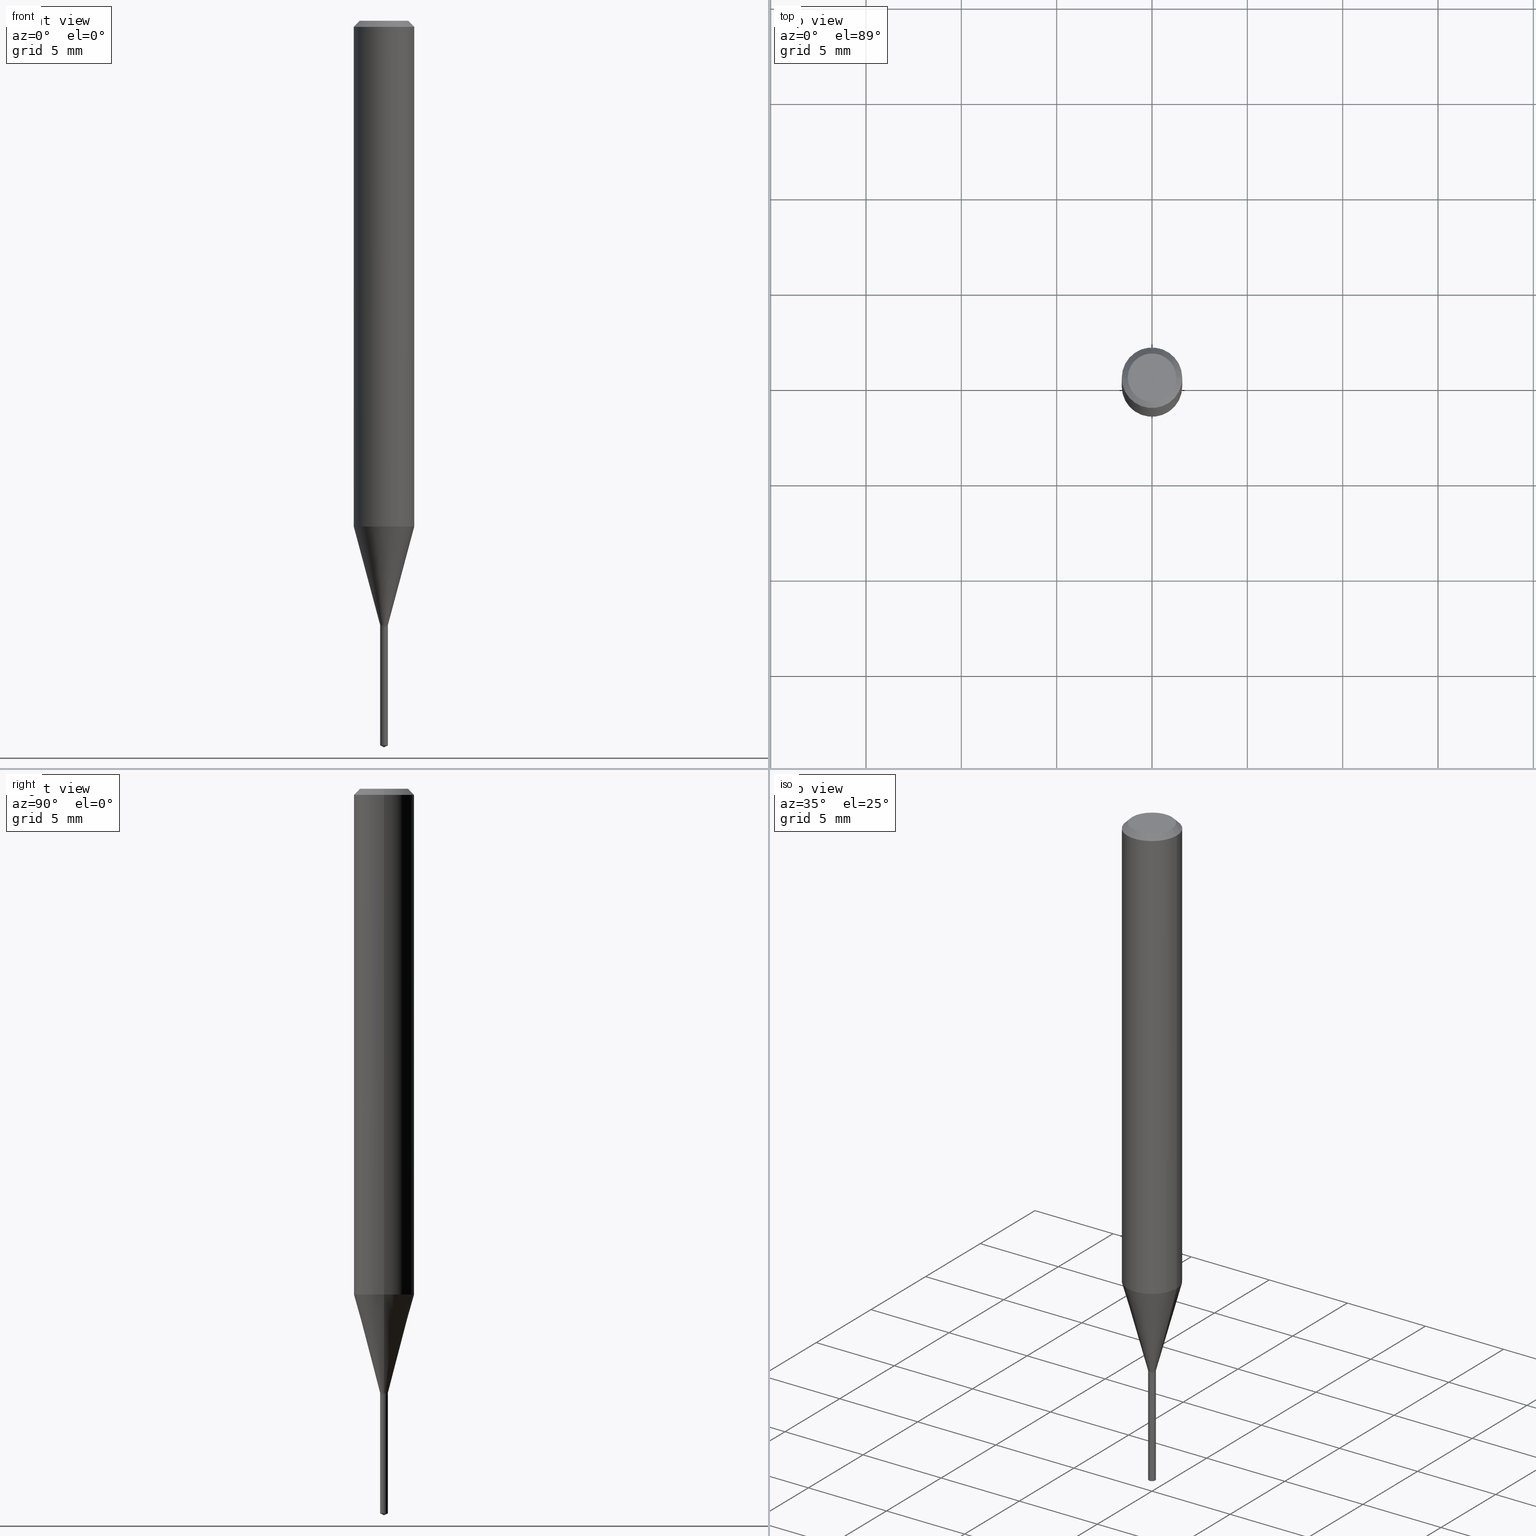
[diagram: canonical four-view strip — front | top / right | iso, engineering-drawing reading convention]
A machine part, canonical four-view strip (front | top / right | iso — engineering-drawing reading convention). The complete STEP part file that produces these views, byte-faithful:
ISO-10303-21;
HEADER;
FILE_DESCRIPTION (( 'STEP AP203' ),
    '1' );
FILE_NAME ('07284.STEP',
    '2024-04-23T20:12:24',
    ( '' ),
    ( '' ),
    'SwSTEP 2.0',
    'SolidWorks 2023',
    '' );
FILE_SCHEMA (( 'CONFIG_CONTROL_DESIGN' ));
ENDSEC;

DATA;
#1 = CARTESIAN_POINT ( 'NONE',  ( 0.06250000000000000000, -4.724246415962603826E-16, -0.01250000000000008396 ) ) ;
#2 = DIRECTION ( 'NONE',  ( -2.445468806185136597E-29, 3.491481338843145583E-15, 1.000000000000000000 ) ) ;
#3 = EDGE_LOOP ( 'NONE', ( #415, #48, #463, #86 ) ) ;
#4 = DIRECTION ( 'NONE',  ( 0.7071067811865453523, -7.319954787623248157E-15, -0.7071067811865496822 ) ) ;
#5 = ORIENTED_EDGE ( 'NONE', *, *, #470, .T. ) ;
#6 = CIRCLE ( 'NONE', #284, 0.06250000000000000000 ) ;
#7 = DIRECTION ( 'NONE',  ( 1.000000000000000000, -6.982962677686265922E-15, 4.875957971899673662E-29 ) ) ;
#8 = AXIS2_PLACEMENT_3D ( 'NONE', #188, #375, #219 ) ;
#9 = ORIENTED_EDGE ( 'NONE', *, *, #23, .F. ) ;
#10 = VERTEX_POINT ( 'NONE', #22 ) ;
#11 = VERTEX_POINT ( 'NONE', #53 ) ;
#12 = DATE_TIME_ROLE ( 'creation_date' ) ;
#13 = ORIENTED_EDGE ( 'NONE', *, *, #487, .T. ) ;
#14 = AXIS2_PLACEMENT_3D ( 'NONE', #377, #477, #485 ) ;
#15 = CC_DESIGN_DATE_AND_TIME_ASSIGNMENT ( #138, #214, ( #70 ) ) ;
#16 = ORIENTED_EDGE ( 'NONE', *, *, #294, .F. ) ;
#17 = DIRECTION ( 'NONE',  ( -2.445468806185136877E-29, 3.491481338843145188E-15, 1.000000000000000000 ) ) ;
#18 = PERSON_AND_ORGANIZATION ( #449, #484 ) ;
#19 = ORIENTED_EDGE ( 'NONE', *, *, #479, .F. ) ;
#20 = APPROVAL_DATE_TIME ( #469, #314 ) ;
#21 = AXIS2_PLACEMENT_3D ( 'NONE', #203, #488, #24 ) ;
#22 = CARTESIAN_POINT ( 'NONE',  ( -0.008000000000000010575, -4.302445606751801651E-15, -1.247600000000000042 ) ) ;
#23 = EDGE_CURVE ( 'NONE', #126, #137, #56, .T. ) ;
#24 = DIRECTION ( 'NONE',  ( -1.000000000000000000, 6.982962677686265922E-15, -4.876176775795935793E-29 ) ) ;
#25 = DIRECTION ( 'NONE',  ( -2.445468806185136597E-29, 3.491481338843145583E-15, 1.000000000000000000 ) ) ;
#26 = CARTESIAN_POINT ( 'NONE',  ( 3.056836007731441415E-31, -4.364351673553961684E-17, -0.01250000000000008396 ) ) ;
#27 = FACE_OUTER_BOUND ( 'NONE', #163, .T. ) ;
#28 = CLOSED_SHELL ( 'NONE', ( #250, #429, #164, #384, #149 ) ) ;
#29 = DIRECTION ( 'NONE',  ( -6.982962677686266711E-15, -1.000000000000000000, 0.000000000000000000 ) ) ;
#30 = CIRCLE ( 'NONE', #436, 0.008000000000000010575 ) ;
#31 = LOCAL_TIME ( 16, 12, 24.00000000000000000, #423 ) ;
#32 = PRODUCT_RELATED_PRODUCT_CATEGORY ( 'detail', '', ( #303 ) ) ;
#33 = FACE_OUTER_BOUND ( 'NONE', #168, .T. ) ;
#34 = CARTESIAN_POINT ( 'NONE',  ( -0.008000000000000010575, 5.684341886080809001E-17, -3.935148072203929922E-31 ) ) ;
#35 = DIRECTION ( 'NONE',  ( -1.000000000000000000, 6.982962677686266711E-15, 0.000000000000000000 ) ) ;
#36 = CARTESIAN_POINT ( 'NONE',  ( 2.553566428697655198E-29, -3.645816094952562303E-15, -1.044203230987496234 ) ) ;
#37 = AXIS2_PLACEMENT_3D ( 'NONE', #190, #2, #125 ) ;
#38 = DIRECTION ( 'NONE',  ( 1.000000000000000000, -6.982962677686266711E-15, 0.000000000000000000 ) ) ;
#39 = ORIENTED_EDGE ( 'NONE', *, *, #115, .T. ) ;
#40 = EDGE_CURVE ( 'NONE', #246, #135, #242, .T. ) ;
#41 = MANIFOLD_SOLID_BREP ( 'Body-Move/Copy2[2]', #362 ) ;
#42 = CARTESIAN_POINT ( 'NONE',  ( 0.000000000000000000, 0.000000000000000000, 0.000000000000000000 ) ) ;
#43 = CARTESIAN_POINT ( 'NONE',  ( 3.893286209682126177E-47, -5.558580879666067980E-33, -1.592040838891559689E-18 ) ) ;
#44 = ORIENTED_EDGE ( 'NONE', *, *, #130, .F. ) ;
#45 = ADVANCED_FACE ( 'NONE', ( #128 ), #109, .T. ) ;
#46 = LINE ( 'NONE', #79, #78 ) ;
#47 = VERTEX_POINT ( 'NONE', #319 ) ;
#48 = ORIENTED_EDGE ( 'NONE', *, *, #487, .F. ) ;
#49 = DATE_AND_TIME ( #83, #31 ) ;
#50 = DIRECTION ( 'NONE',  ( -2.445468806185136597E-29, 3.491481338843145583E-15, 1.000000000000000000 ) ) ;
#51 = ADVANCED_FACE ( 'NONE', ( #468 ), #472, .F. ) ;
#52 = AXIS2_PLACEMENT_3D ( 'NONE', #62, #113, #486 ) ;
#53 = CARTESIAN_POINT ( 'NONE',  ( 0.04999999999999999584, -4.077247707424184705E-16, -1.592040838888913461E-18 ) ) ;
#54 = CONICAL_SURFACE ( 'NONE', #440, 84.42940631927278616, 1.134464013796308901 ) ;
#55 = APPROVAL_PERSON_ORGANIZATION ( #177, #244, #295 ) ;
#56 = LINE ( 'NONE', #206, #416 ) ;
#57 = DIRECTION ( 'NONE',  ( -2.438088387897960049E-29, 3.491481338843145188E-15, 1.000000000000000000 ) ) ;
#58 = PERSON_AND_ORGANIZATION_ROLE ( 'classification_officer' ) ;
#59 = EDGE_CURVE ( 'NONE', #204, #286, #388, .T. ) ;
#60 = ORIENTED_EDGE ( 'NONE', *, *, #356, .T. ) ;
#61 = CIRCLE ( 'NONE', #14, 0.008000000000000000167 ) ;
#62 = CARTESIAN_POINT ( 'NONE',  ( 0.000000000000000000, 0.000000000000000000, 0.000000000000000000 ) ) ;
#63 = CARTESIAN_POINT ( 'NONE',  ( 3.659053248846797087E-29, -5.224236172686390639E-15, -1.496269538734759985 ) ) ;
#64 = CARTESIAN_POINT ( 'NONE',  ( 0.000000000000000000, 0.000000000000000000, 0.000000000000000000 ) ) ;
#65 = LINE ( 'NONE', #257, #111 ) ;
#66 = ADVANCED_FACE ( 'NONE', ( #27 ), #99, .T. ) ;
#67 = CARTESIAN_POINT ( 'NONE',  ( 0.008000000000000012310, -4.418469634306001449E-15, -1.249500000000000055 ) ) ;
#68 = CARTESIAN_POINT ( 'NONE',  ( 3.056836007731421306E-29, -4.364351673553932471E-15, -1.250000000000000000 ) ) ;
#69 = VECTOR ( 'NONE', #147, 39.37007874015748143 ) ;
#70 = SECURITY_CLASSIFICATION ( '', '', #248 ) ;
#71 = CARTESIAN_POINT ( 'NONE',  ( -5.586370142145353991E-17, -0.008000000000005226888, -1.496269538734759985 ) ) ;
#72 = DIRECTION ( 'NONE',  ( 1.000000000000000000, -6.982962677686203602E-15, 0.000000000000000000 ) ) ;
#73 = CARTESIAN_POINT ( 'NONE',  ( 3.056836007731421306E-29, -4.364351673553932471E-15, -1.250000000000000000 ) ) ;
#74 = ADVANCED_FACE ( 'NONE', ( #108 ), #254, .T. ) ;
#75 = ORIENTED_EDGE ( 'NONE', *, *, #288, .T. ) ;
#76 = PERSON_AND_ORGANIZATION_ROLE ( 'design_owner' ) ;
#77 = AXIS2_PLACEMENT_3D ( 'NONE', #36, #176, #225 ) ;
#78 = VECTOR ( 'NONE', #382, 39.37007874015748854 ) ;
#79 = CARTESIAN_POINT ( 'NONE',  ( 3.668316218764602717E-29, -5.237063643918339248E-15, -1.500000000000000222 ) ) ;
#80 = CC_DESIGN_APPROVAL ( #314, ( #323 ) ) ;
#81 = DIRECTION ( 'NONE',  ( -2.445468806185136597E-29, 3.491481338843145583E-15, 1.000000000000000000 ) ) ;
#82 = ORIENTED_EDGE ( 'NONE', *, *, #435, .T. ) ;
#83 = CALENDAR_DATE ( 2024, 23, 4 ) ;
#84 = EDGE_CURVE ( 'NONE', #286, #204, #165, .T. ) ;
#85 = FACE_OUTER_BOUND ( 'NONE', #212, .T. ) ;
#86 = ORIENTED_EDGE ( 'NONE', *, *, #330, .T. ) ;
#87 =( LENGTH_UNIT ( ) NAMED_UNIT ( * ) SI_UNIT ( $, .METRE. ) );
#88 = AXIS2_PLACEMENT_3D ( 'NONE', #63, #328, #29 ) ;
#89 = ORIENTED_EDGE ( 'NONE', *, *, #399, .T. ) ;
#90 = EDGE_LOOP ( 'NONE', ( #321, #95, #390, #210 ) ) ;
#91 = AXIS2_PLACEMENT_3D ( 'NONE', #172, #50, #171 ) ;
#92 = ORIENTED_EDGE ( 'NONE', *, *, #258, .F. ) ;
#93 = AXIS2_PLACEMENT_3D ( 'NONE', #114, #296, #104 ) ;
#94 = LOCAL_TIME ( 16, 12, 24.00000000000000000, #136 ) ;
#95 = ORIENTED_EDGE ( 'NONE', *, *, #170, .T. ) ;
#96 = PERSON_AND_ORGANIZATION_ROLE ( 'design_supplier' ) ;
#97 = EDGE_LOOP ( 'NONE', ( #422, #387, #352, #19 ) ) ;
#98 = DIRECTION ( 'NONE',  ( -2.445468806185136597E-29, 3.491481338843145583E-15, 1.000000000000000000 ) ) ;
#99 = CONICAL_SURFACE ( 'NONE', #380, 0.008000000000000010575, 0.2617993877991499629 ) ;
#100 = AXIS2_PLACEMENT_3D ( 'NONE', #68, #101, #253 ) ;
#101 = DIRECTION ( 'NONE',  ( -2.445358220953112322E-29, 3.491639703189524906E-15, 1.000000000000000000 ) ) ;
#102 = CARTESIAN_POINT ( 'NONE',  ( -0.06250000000000000000, 3.927916506198520587E-16, -0.01250000000000008396 ) ) ;
#103 = EDGE_CURVE ( 'NONE', #47, #123, #395, .T. ) ;
#104 = DIRECTION ( 'NONE',  ( -1.000000000000000000, 6.982962677686266711E-15, 0.000000000000000000 ) ) ;
#105 = DIRECTION ( 'NONE',  ( 0.2588190451025212391, 1.565188264969622362E-15, 0.9659258262890679791 ) ) ;
#106 = COORDINATED_UNIVERSAL_TIME_OFFSET ( 5, 0, .BEHIND. ) ;
#107 = FACE_OUTER_BOUND ( 'NONE', #97, .T. ) ;
#108 = FACE_OUTER_BOUND ( 'NONE', #279, .T. ) ;
#109 = CONICAL_SURFACE ( 'NONE', #91, 0.007499999999999999722, 0.7853981633975614107 ) ;
#110 = DIRECTION ( 'NONE',  ( -6.982962677686266711E-15, -1.000000000000000000, 0.000000000000000000 ) ) ;
#111 = VECTOR ( 'NONE', #481, 39.37007874015748854 ) ;
#112 = AXIS2_PLACEMENT_3D ( 'NONE', #262, #407, #162 ) ;
#113 = DIRECTION ( 'NONE',  ( -2.445468806185136597E-29, 3.491481338843145583E-15, 1.000000000000000000 ) ) ;
#114 = CARTESIAN_POINT ( 'NONE',  ( 3.056836007731441415E-31, -4.364351673553961684E-17, -0.01250000000000008396 ) ) ;
#115 = EDGE_CURVE ( 'NONE', #199, #246, #158, .T. ) ;
#116 = DIRECTION ( 'NONE',  ( -2.445468806185136597E-29, 3.491481338843145583E-15, 1.000000000000000000 ) ) ;
#117 = FACE_OUTER_BOUND ( 'NONE', #90, .T. ) ;
#118 = APPLICATION_PROTOCOL_DEFINITION ( 'international standard', 'config_control_design', 1994, #209 ) ;
#119 = AXIS2_PLACEMENT_3D ( 'NONE', #304, #414, #226 ) ;
#120 = APPROVAL_PERSON_ORGANIZATION ( #18, #314, #129 ) ;
#121 = PLANE ( 'NONE',  #21 ) ;
#122 = APPROVAL_DATE_TIME ( #224, #244 ) ;
#123 = VERTEX_POINT ( 'NONE', #251 ) ;
#124 = CC_DESIGN_PERSON_AND_ORGANIZATION_ASSIGNMENT ( #401, #58, ( #70 ) ) ;
#125 = DIRECTION ( 'NONE',  ( 1.000000000000000000, -6.982962677686324297E-15, 0.000000000000000000 ) ) ;
#126 = VERTEX_POINT ( 'NONE', #71 ) ;
#127 = APPLICATION_PROTOCOL_DEFINITION ( 'international standard', 'config_control_design', 1994, #412 ) ;
#128 = FACE_OUTER_BOUND ( 'NONE', #241, .T. ) ;
#129 = APPROVAL_ROLE ( '' ) ;
#130 = EDGE_CURVE ( 'NONE', #349, #327, #6, .T. ) ;
#131 = SHAPE_DEFINITION_REPRESENTATION ( #185, #133 ) ;
#132 = ORIENTED_EDGE ( 'NONE', *, *, #240, .T. ) ;
#133 = ADVANCED_BREP_SHAPE_REPRESENTATION ( '07284', ( #366, #41, #239 ), #278 ) ;
#134 = EDGE_LOOP ( 'NONE', ( #174, #282 ) ) ;
#135 = VERTEX_POINT ( 'NONE', #148 ) ;
#136 = COORDINATED_UNIVERSAL_TIME_OFFSET ( 5, 0, .BEHIND. ) ;
#137 = VERTEX_POINT ( 'NONE', #182 ) ;
#138 = DATE_AND_TIME ( #325, #269 ) ;
#139 = DIRECTION ( 'NONE',  ( -2.445468806185136597E-29, 3.491481338843145583E-15, 1.000000000000000000 ) ) ;
#140 = DIRECTION ( 'NONE',  ( -6.982962677686268288E-15, -1.000000000000000000, 3.520397390770518557E-15 ) ) ;
#141 = CC_DESIGN_PERSON_AND_ORGANIZATION_ASSIGNMENT ( #202, #432, ( #323 ) ) ;
#142 = CARTESIAN_POINT ( 'NONE',  ( 0.008000000000000010575, -4.411835819762199735E-15, -1.247600000000000042 ) ) ;
#143 = CONICAL_SURFACE ( 'NONE', #467, 0.06250000000000000000, 0.7853981633974452814 ) ;
#144 = CYLINDRICAL_SURFACE ( 'NONE', #301, 0.008000000000000000167 ) ;
#145 = DIRECTION ( 'NONE',  ( -0.7071067811865453523, 2.468850131082234184E-15, -0.7071067811865496822 ) ) ;
#146 = DIRECTION ( 'NONE',  ( 1.000000000000000000, -6.982962677686266711E-15, 0.000000000000000000 ) ) ;
#147 = DIRECTION ( 'NONE',  ( -2.445468806185136877E-29, 3.491481338843145188E-15, 1.000000000000000000 ) ) ;
#148 = CARTESIAN_POINT ( 'NONE',  ( 0.008000000000000010575, -4.411835819762199735E-15, -1.247600000000000042 ) ) ;
#149 = ADVANCED_FACE ( 'NONE', ( #298 ), #410, .F. ) ;
#150 = CIRCLE ( 'NONE', #459, 0.008000000000000000167 ) ;
#151 = DIMENSIONAL_EXPONENTS ( 1.000000000000000000, 0.000000000000000000, 0.000000000000000000, 0.000000000000000000, 0.000000000000000000, 0.000000000000000000, 0.000000000000000000 ) ;
#152 = DIRECTION ( 'NONE',  ( -2.445358220953112322E-29, 3.491639703189524906E-15, 1.000000000000000000 ) ) ;
#153 = LENGTH_MEASURE_WITH_UNIT ( LENGTH_MEASURE( 0.02539999999999999897 ), #87 );
#154 = CARTESIAN_POINT ( 'NONE',  ( 3.050966882596576644E-29, -4.355972118340708465E-15, -1.247600000000000042 ) ) ;
#155 = PRODUCT_DEFINITION ( 'UNKNOWN', '', #323, #187 ) ;
#156 = DIRECTION ( 'NONE',  ( 1.000000000000000000, -6.982962677686266711E-15, 4.876176775795935793E-29 ) ) ;
#157 = DIRECTION ( 'NONE',  ( 1.000000000000000000, 0.000000000000000000, 0.000000000000000000 ) ) ;
#158 = CIRCLE ( 'NONE', #220, 0.008000000000000012310 ) ;
#159 = FACE_OUTER_BOUND ( 'NONE', #196, .T. ) ;
#160 = VERTEX_POINT ( 'NONE', #335 ) ;
#161 = ORIENTED_EDGE ( 'NONE', *, *, #399, .F. ) ;
#162 = DIRECTION ( 'NONE',  ( 1.000000000000000000, -6.982962677686265922E-15, 4.875957971899673662E-29 ) ) ;
#163 = EDGE_LOOP ( 'NONE', ( #425, #431, #169, #308 ) ) ;
#164 = ADVANCED_FACE ( 'NONE', ( #404 ), #277, .T. ) ;
#165 = CIRCLE ( 'NONE', #77, 0.06250000000000013878 ) ;
#166 = AXIS2_PLACEMENT_3D ( 'NONE', #42, #116, #348 ) ;
#167 = CIRCLE ( 'NONE', #112, 0.04999999999999999584 ) ;
#168 = EDGE_LOOP ( 'NONE', ( #281, #75, #353, #9 ) ) ;
#169 = ORIENTED_EDGE ( 'NONE', *, *, #59, .F. ) ;
#170 = EDGE_CURVE ( 'NONE', #10, #135, #474, .T. ) ;
#171 = DIRECTION ( 'NONE',  ( 1.000000000000000000, -6.982962677686203602E-15, 0.000000000000000000 ) ) ;
#172 = CARTESIAN_POINT ( 'NONE',  ( 3.056836007731421306E-29, -4.364351673553932471E-15, -1.250000000000000000 ) ) ;
#173 = AXIS2_PLACEMENT_3D ( 'NONE', #73, #152, #230 ) ;
#174 = ORIENTED_EDGE ( 'NONE', *, *, #442, .T. ) ;
#175 = FACE_OUTER_BOUND ( 'NONE', #363, .T. ) ;
#176 = DIRECTION ( 'NONE',  ( -2.445468806185136597E-29, 3.491481338843145583E-15, 1.000000000000000000 ) ) ;
#177 = PERSON_AND_ORGANIZATION ( #449, #484 ) ;
#178 = LINE ( 'NONE', #374, #261 ) ;
#179 = CC_DESIGN_PERSON_AND_ORGANIZATION_ASSIGNMENT ( #272, #237, ( #155 ) ) ;
#180 = CARTESIAN_POINT ( 'NONE',  ( 3.050966882596576644E-29, -4.355972118340708465E-15, -1.247600000000000042 ) ) ;
#181 = CARTESIAN_POINT ( 'NONE',  ( -9.260577014384575703E-28, 1.322288684474803865E-13, 37.87007874015748143 ) ) ;
#182 = CARTESIAN_POINT ( 'NONE',  ( -5.586370142145956730E-17, -0.008000000000004364731, -1.250000000000000000 ) ) ;
#183 = DIRECTION ( 'NONE',  ( -2.445468806185136877E-29, 3.491481338843145188E-15, 1.000000000000000000 ) ) ;
#184 = APPROVAL ( #420, 'UNSPECIFIED' ) ;
#185 = PRODUCT_DEFINITION_SHAPE ( 'NONE', 'NONE',  #155 ) ;
#186 = CARTESIAN_POINT ( 'NONE',  ( 3.056836007731421306E-29, -4.364351673553932471E-15, -1.250000000000000000 ) ) ;
#187 = DESIGN_CONTEXT ( 'detailed design', #209, 'design' ) ;
#188 = CARTESIAN_POINT ( 'NONE',  ( -9.260577014384575703E-28, 1.322288684474803865E-13, 37.87007874015748143 ) ) ;
#189 = LOCAL_TIME ( 16, 12, 24.00000000000000000, #381 ) ;
#190 = CARTESIAN_POINT ( 'NONE',  ( 3.050966882596576644E-29, -4.355972118340708465E-15, -1.247600000000000042 ) ) ;
#191 = ORIENTED_EDGE ( 'NONE', *, *, #448, .F. ) ;
#192 = EDGE_CURVE ( 'NONE', #199, #10, #332, .T. ) ;
#193 = CYLINDRICAL_SURFACE ( 'NONE', #238, 0.008000000000000010575 ) ;
#194 = PERSON_AND_ORGANIZATION ( #449, #484 ) ;
#195 = CYLINDRICAL_SURFACE ( 'NONE', #166, 0.06250000000000006939 ) ;
#196 = EDGE_LOOP ( 'NONE', ( #287, #39, #234, #313 ) ) ;
#197 = CIRCLE ( 'NONE', #396, 0.06250000000000000000 ) ;
#198 = CARTESIAN_POINT ( 'NONE',  ( 3.668037331429668622E-29, -5.237459554784287358E-15, -1.500000000000000222 ) ) ;
#199 = VERTEX_POINT ( 'NONE', #256 ) ;
#200 = ORIENTED_EDGE ( 'NONE', *, *, #240, .F. ) ;
#201 = EDGE_CURVE ( 'NONE', #126, #160, #61, .T. ) ;
#202 = PERSON_AND_ORGANIZATION ( #449, #484 ) ;
#203 = CARTESIAN_POINT ( 'NONE',  ( 1.946643104841063088E-47, -2.779290439833033990E-33, -7.960204194457798443E-19 ) ) ;
#204 = VERTEX_POINT ( 'NONE', #489 ) ;
#205 = CONICAL_SURFACE ( 'NONE', #37, 0.008000000000000010575, 0.2617993877991499629 ) ;
#206 = CARTESIAN_POINT ( 'NONE',  ( -5.586370142145956730E-17, -0.008000000000004364731, -1.250000000000000000 ) ) ;
#207 = ADVANCED_FACE ( 'NONE', ( #373 ), #300, .T. ) ;
#208 = ORIENTED_EDGE ( 'NONE', *, *, #130, .T. ) ;
#209 = APPLICATION_CONTEXT ( 'configuration controlled 3d designs of mechanical parts and assemblies' ) ;
#210 = ORIENTED_EDGE ( 'NONE', *, *, #84, .F. ) ;
#211 = COORDINATED_UNIVERSAL_TIME_OFFSET ( 5, 0, .BEHIND. ) ;
#212 = EDGE_LOOP ( 'NONE', ( #13, #60 ) ) ;
#213 = DIRECTION ( 'NONE',  ( -2.445468806185136597E-29, 3.491481338843145583E-15, 1.000000000000000000 ) ) ;
#214 = DATE_TIME_ROLE ( 'classification_date' ) ;
#215 = EDGE_CURVE ( 'NONE', #135, #204, #480, .T. ) ;
#216 = CARTESIAN_POINT ( 'NONE',  ( -0.008000000000000010575, -4.299128699479900400E-15, -1.247600000000000042 ) ) ;
#217 = DIRECTION ( 'NONE',  ( -2.445468806185136597E-29, 3.491481338843145583E-15, 1.000000000000000000 ) ) ;
#218 = APPROVAL_STATUS ( 'not_yet_approved' ) ;
#219 = DIRECTION ( 'NONE',  ( -6.982962677686268288E-15, -1.000000000000000000, 3.520397390770518557E-15 ) ) ;
#220 = AXIS2_PLACEMENT_3D ( 'NONE', #439, #217, #369 ) ;
#221 = AXIS2_PLACEMENT_3D ( 'NONE', #312, #386, #233 ) ;
#222 = CARTESIAN_POINT ( 'NONE',  ( 3.055613273328328505E-29, -4.362605932884510968E-15, -1.249500000000000055 ) ) ;
#223 = DIRECTION ( 'NONE',  ( 1.000000000000000000, -6.982962677686324297E-15, 0.000000000000000000 ) ) ;
#224 = DATE_AND_TIME ( #260, #333 ) ;
#225 = DIRECTION ( 'NONE',  ( 1.000000000000000000, -6.982962677686270655E-15, 0.000000000000000000 ) ) ;
#226 = DIRECTION ( 'NONE',  ( 1.000000000000000000, -6.982962677686203602E-15, 0.000000000000000000 ) ) ;
#227 = EDGE_CURVE ( 'NONE', #358, #327, #443, .T. ) ;
#228 = CARTESIAN_POINT ( 'NONE',  ( 0.000000000000000000, 0.000000000000000000, 0.000000000000000000 ) ) ;
#229 = VECTOR ( 'NONE', #183, 39.37007874015748143 ) ;
#230 = DIRECTION ( 'NONE',  ( -6.982962677686266711E-15, -1.000000000000000000, 0.000000000000000000 ) ) ;
#231 = ORIENTED_EDGE ( 'NONE', *, *, #368, .F. ) ;
#232 = CALENDAR_DATE ( 2024, 23, 4 ) ;
#233 = DIRECTION ( 'NONE',  ( 1.000000000000000000, -6.982962677686203602E-15, 0.000000000000000000 ) ) ;
#234 = ORIENTED_EDGE ( 'NONE', *, *, #40, .T. ) ;
#235 = DIRECTION ( 'NONE',  ( 1.000000000000000000, -6.982962677686324297E-15, 0.000000000000000000 ) ) ;
#236 = ORIENTED_EDGE ( 'NONE', *, *, #115, .F. ) ;
#237 = PERSON_AND_ORGANIZATION_ROLE ( 'creator' ) ;
#238 = AXIS2_PLACEMENT_3D ( 'NONE', #385, #273, #156 ) ;
#239 = AXIS2_PLACEMENT_3D ( 'NONE', #228, #389, #157 ) ;
#240 = EDGE_CURVE ( 'NONE', #123, #246, #293, .T. ) ;
#241 = EDGE_LOOP ( 'NONE', ( #271, #320, #161, #200 ) ) ;
#242 = LINE ( 'NONE', #359, #310 ) ;
#243 = EDGE_LOOP ( 'NONE', ( #191, #343, #82, #471 ) ) ;
#244 = APPROVAL ( #218, 'UNSPECIFIED' ) ;
#245 = VECTOR ( 'NONE', #367, 39.37007874015748854 ) ;
#246 = VERTEX_POINT ( 'NONE', #67 ) ;
#247 = ORIENTED_EDGE ( 'NONE', *, *, #448, .T. ) ;
#248 = SECURITY_CLASSIFICATION_LEVEL ( 'unclassified' ) ;
#249 = ORIENTED_EDGE ( 'NONE', *, *, #356, .F. ) ;
#250 = ADVANCED_FACE ( 'NONE', ( #33 ), #455, .T. ) ;
#251 = CARTESIAN_POINT ( 'NONE',  ( 0.007499999999999999722, -4.416723893636579156E-15, -1.250000000000000000 ) ) ;
#252 = VECTOR ( 'NONE', #452, 39.37007874015748143 ) ;
#253 = DIRECTION ( 'NONE',  ( -6.982962677686266711E-15, -1.000000000000000000, 0.000000000000000000 ) ) ;
#254 = CYLINDRICAL_SURFACE ( 'NONE', #52, 0.008000000000000010575 ) ;
#255 = LINE ( 'NONE', #216, #245 ) ;
#256 = CARTESIAN_POINT ( 'NONE',  ( -0.008000000000000014044, -4.302445606751801651E-15, -1.249500000000000055 ) ) ;
#257 = CARTESIAN_POINT ( 'NONE',  ( 3.668037331429668062E-29, -5.237459554784286570E-15, -1.500000000000000222 ) ) ;
#258 = EDGE_CURVE ( 'NONE', #123, #47, #350, .T. ) ;
#259 = CARTESIAN_POINT ( 'NONE',  ( 3.050966882596576644E-29, -4.355972118340708465E-15, -1.247600000000000042 ) ) ;
#260 = CALENDAR_DATE ( 2024, 23, 4 ) ;
#261 = VECTOR ( 'NONE', #337, 39.37007874015748143 ) ;
#262 = CARTESIAN_POINT ( 'NONE',  ( 3.893286209682126177E-47, -5.558580879666067980E-33, -1.592040838891559689E-18 ) ) ;
#263 = DIRECTION ( 'NONE',  ( 6.982962677686265922E-15, 1.000000000000000000, -3.491639703189525300E-15 ) ) ;
#264 = CARTESIAN_POINT ( 'NONE',  ( 3.056836007731441415E-31, -4.364351673553961684E-17, -0.01250000000000008396 ) ) ;
#265 = ORIENTED_EDGE ( 'NONE', *, *, #40, .F. ) ;
#266 = LINE ( 'NONE', #344, #252 ) ;
#267 = CC_DESIGN_PERSON_AND_ORGANIZATION_ASSIGNMENT ( #194, #76, ( #303 ) ) ;
#268 = ORIENTED_EDGE ( 'NONE', *, *, #103, .T. ) ;
#269 = LOCAL_TIME ( 16, 12, 24.00000000000000000, #211 ) ;
#270 = CARTESIAN_POINT ( 'NONE',  ( -0.06250000000000013878, -3.201726885102498109E-15, -1.044203230987496234 ) ) ;
#271 = ORIENTED_EDGE ( 'NONE', *, *, #258, .T. ) ;
#272 = PERSON_AND_ORGANIZATION ( #449, #484 ) ;
#273 = DIRECTION ( 'NONE',  ( -2.445468806185136597E-29, 3.491481338843145583E-15, 1.000000000000000000 ) ) ;
#274 = VERTEX_POINT ( 'NONE', #198 ) ;
#275 = ADVANCED_FACE ( 'NONE', ( #117 ), #205, .T. ) ;
#276 = EDGE_LOOP ( 'NONE', ( #249, #427, #208, #361 ) ) ;
#277 = CONICAL_SURFACE ( 'NONE', #8, 84.42940631927278616, 1.134464013796308901 ) ;
#278 =( GEOMETRIC_REPRESENTATION_CONTEXT ( 3 ) GLOBAL_UNCERTAINTY_ASSIGNED_CONTEXT ( ( #297 ) ) GLOBAL_UNIT_ASSIGNED_CONTEXT ( ( #453, #305, #464 ) ) REPRESENTATION_CONTEXT ( 'NONE', 'WORKASPACE' ) );
#279 = EDGE_LOOP ( 'NONE', ( #89, #316, #430, #265 ) ) ;
#280 = CC_DESIGN_PERSON_AND_ORGANIZATION_ASSIGNMENT ( #283, #96, ( #323 ) ) ;
#281 = ORIENTED_EDGE ( 'NONE', *, *, #201, .T. ) ;
#282 = ORIENTED_EDGE ( 'NONE', *, *, #479, .T. ) ;
#283 = PERSON_AND_ORGANIZATION ( #449, #484 ) ;
#284 = AXIS2_PLACEMENT_3D ( 'NONE', #329, #139, #146 ) ;
#285 = AXIS2_PLACEMENT_3D ( 'NONE', #222, #292, #290 ) ;
#286 = VERTEX_POINT ( 'NONE', #270 ) ;
#287 = ORIENTED_EDGE ( 'NONE', *, *, #192, .F. ) ;
#288 = EDGE_CURVE ( 'NONE', #160, #466, #266, .T. ) ;
#289 = DIRECTION ( 'NONE',  ( 1.000000000000000000, -6.982962677686266711E-15, 4.876176775795935793E-29 ) ) ;
#290 = DIRECTION ( 'NONE',  ( 1.000000000000000000, -6.982962677686261189E-15, 0.000000000000000000 ) ) ;
#291 = CARTESIAN_POINT ( 'NONE',  ( 3.056836007731421306E-29, -4.364351673553932471E-15, -1.250000000000000000 ) ) ;
#292 = DIRECTION ( 'NONE',  ( -2.445468806185136597E-29, 3.491481338843145583E-15, 1.000000000000000000 ) ) ;
#293 = LINE ( 'NONE', #444, #418 ) ;
#294 = EDGE_CURVE ( 'NONE', #274, #160, #46, .T. ) ;
#295 = APPROVAL_ROLE ( '' ) ;
#296 = DIRECTION ( 'NONE',  ( 2.445468806185136597E-29, -3.491481338843145583E-15, -1.000000000000000000 ) ) ;
#297 = UNCERTAINTY_MEASURE_WITH_UNIT (LENGTH_MEASURE( 1.000000000000000082E-05 ), #453, 'distance_accuracy_value', 'NONE');
#298 = FACE_OUTER_BOUND ( 'NONE', #134, .T. ) ;
#299 = FACE_OUTER_BOUND ( 'NONE', #276, .T. ) ;
#300 = CYLINDRICAL_SURFACE ( 'NONE', #409, 0.06250000000000006939 ) ;
#301 = AXIS2_PLACEMENT_3D ( 'NONE', #186, #376, #110 ) ;
#302 = LINE ( 'NONE', #451, #69 ) ;
#303 = PRODUCT ( '07284', '07284', '', ( #340 ) ) ;
#304 = CARTESIAN_POINT ( 'NONE',  ( 3.056836007731421306E-29, -4.364351673553932471E-15, -1.250000000000000000 ) ) ;
#305 =( NAMED_UNIT ( * ) PLANE_ANGLE_UNIT ( ) SI_UNIT ( $, .RADIAN. ) );
#306 = EDGE_CURVE ( 'NONE', #135, #10, #30, .T. ) ;
#307 = DIRECTION ( 'NONE',  ( -2.445468806185136597E-29, 3.491481338843145583E-15, 1.000000000000000000 ) ) ;
#308 = ORIENTED_EDGE ( 'NONE', *, *, #215, .F. ) ;
#309 = CARTESIAN_POINT ( 'NONE',  ( -0.007499999999999999722, -4.311060968371924516E-15, -1.250000000000000000 ) ) ;
#310 = VECTOR ( 'NONE', #17, 39.37007874015748143 ) ;
#311 = CONICAL_SURFACE ( 'NONE', #93, 0.06250000000000000000, 0.7853981633974452814 ) ;
#312 = CARTESIAN_POINT ( 'NONE',  ( 3.056836007731421306E-29, -4.364351673553932471E-15, -1.250000000000000000 ) ) ;
#313 = ORIENTED_EDGE ( 'NONE', *, *, #170, .F. ) ;
#314 = APPROVAL ( #473, 'UNSPECIFIED' ) ;
#315 = ORIENTED_EDGE ( 'NONE', *, *, #59, .T. ) ;
#316 = ORIENTED_EDGE ( 'NONE', *, *, #192, .T. ) ;
#317 = VECTOR ( 'NONE', #457, 39.37007874015748854 ) ;
#318 = CC_DESIGN_DATE_AND_TIME_ASSIGNMENT ( #49, #12, ( #155 ) ) ;
#319 = CARTESIAN_POINT ( 'NONE',  ( -0.007499999999999999722, -4.308411741197814103E-15, -1.250000000000000000 ) ) ;
#320 = ORIENTED_EDGE ( 'NONE', *, *, #368, .T. ) ;
#321 = ORIENTED_EDGE ( 'NONE', *, *, #454, .F. ) ;
#322 = VECTOR ( 'NONE', #145, 39.37007874015748143 ) ;
#323 = PRODUCT_DEFINITION_FORMATION_WITH_SPECIFIED_SOURCE ( 'ANY', '', #303, .NOT_KNOWN. ) ;
#324 = DIRECTION ( 'NONE',  ( 1.000000000000000000, -6.982962677686265922E-15, 4.876176775795935793E-29 ) ) ;
#325 = CALENDAR_DATE ( 2024, 23, 4 ) ;
#326 = ADVANCED_FACE ( 'NONE', ( #417 ), #195, .T. ) ;
#327 = VERTEX_POINT ( 'NONE', #421 ) ;
#328 = DIRECTION ( 'NONE',  ( -2.445358220953112322E-29, 3.491639703189524906E-15, 1.000000000000000000 ) ) ;
#329 = CARTESIAN_POINT ( 'NONE',  ( 3.056836007731441415E-31, -4.364351673553961684E-17, -0.01250000000000008396 ) ) ;
#330 = EDGE_CURVE ( 'NONE', #327, #349, #197, .T. ) ;
#331 = CIRCLE ( 'NONE', #100, 0.008000000000000000167 ) ;
#332 = LINE ( 'NONE', #34, #229 ) ;
#333 = LOCAL_TIME ( 16, 12, 24.00000000000000000, #106 ) ;
#334 = DIRECTION ( 'NONE',  ( -6.982962677686266711E-15, -1.000000000000000000, 0.000000000000000000 ) ) ;
#335 = CARTESIAN_POINT ( 'NONE',  ( 5.684341886084461180E-17, 0.007999999999994776914, -1.496269538734759985 ) ) ;
#336 = CARTESIAN_POINT ( 'NONE',  ( 3.056836007731421306E-29, -4.364351673553932471E-15, -1.250000000000000000 ) ) ;
#337 = DIRECTION ( 'NONE',  ( -2.445468806185136877E-29, 3.491481338843145188E-15, 1.000000000000000000 ) ) ;
#338 = CARTESIAN_POINT ( 'NONE',  ( -0.04999999999999999584, 3.709698922520826725E-16, -1.592040838894077649E-18 ) ) ;
#339 = VECTOR ( 'NONE', #105, 39.37007874015748854 ) ;
#340 = MECHANICAL_CONTEXT ( 'NONE', #412, 'mechanical' ) ;
#341 = ADVANCED_FACE ( 'NONE', ( #342 ), #403, .T. ) ;
#342 = FACE_OUTER_BOUND ( 'NONE', #402, .T. ) ;
#343 = ORIENTED_EDGE ( 'NONE', *, *, #84, .T. ) ;
#344 = CARTESIAN_POINT ( 'NONE',  ( 5.684341886083857209E-17, 0.007999999999995635602, -1.250000000000000000 ) ) ;
#345 = ORIENTED_EDGE ( 'NONE', *, *, #201, .F. ) ;
#346 = APPROVAL_DATE_TIME ( #383, #184 ) ;
#347 = ADVANCED_FACE ( 'NONE', ( #159 ), #193, .T. ) ;
#348 = DIRECTION ( 'NONE',  ( 1.000000000000000000, -6.982962677686266711E-15, 4.876176775795935793E-29 ) ) ;
#349 = VERTEX_POINT ( 'NONE', #351 ) ;
#350 = CIRCLE ( 'NONE', #119, 0.007499999999999999722 ) ;
#351 = CARTESIAN_POINT ( 'NONE',  ( 0.06250000000000000000, -4.800786840909313294E-16, -0.01250000000000008396 ) ) ;
#352 = ORIENTED_EDGE ( 'NONE', *, *, #23, .T. ) ;
#353 = ORIENTED_EDGE ( 'NONE', *, *, #442, .F. ) ;
#354 = EDGE_LOOP ( 'NONE', ( #16, #5, #456 ) ) ;
#355 = AXIS2_PLACEMENT_3D ( 'NONE', #400, #57, #324 ) ;
#356 = EDGE_CURVE ( 'NONE', #11, #358, #357, .T. ) ;
#357 = CIRCLE ( 'NONE', #428, 0.04999999999999999584 ) ;
#358 = VERTEX_POINT ( 'NONE', #338 ) ;
#359 = CARTESIAN_POINT ( 'NONE',  ( 0.008000000000000010575, -5.586370142149020961E-17, 3.900941420636753854E-31 ) ) ;
#360 = EDGE_CURVE ( 'NONE', #11, #349, #424, .T. ) ;
#361 = ORIENTED_EDGE ( 'NONE', *, *, #227, .F. ) ;
#362 = CLOSED_SHELL ( 'NONE', ( #45, #465, #326, #66, #74, #347, #275, #207, #419, #378, #51, #341 ) ) ;
#363 = EDGE_LOOP ( 'NONE', ( #433, #437, #345 ) ) ;
#364 = DIRECTION ( 'NONE',  ( 2.445468806185136597E-29, -3.491481338843145583E-15, -1.000000000000000000 ) ) ;
#365 = DIRECTION ( 'NONE',  ( 1.000000000000000000, -6.982962677686324297E-15, 0.000000000000000000 ) ) ;
#366 = MANIFOLD_SOLID_BREP ( 'Body-Move/Copy2[1]', #28 ) ;
#367 = DIRECTION ( 'NONE',  ( -0.2588190451025212391, 5.211531920934549464E-15, 0.9659258262890679791 ) ) ;
#368 = EDGE_CURVE ( 'NONE', #47, #199, #462, .T. ) ;
#369 = DIRECTION ( 'NONE',  ( 1.000000000000000000, -6.982962677686261189E-15, 0.000000000000000000 ) ) ;
#370 = CARTESIAN_POINT ( 'NONE',  ( 3.056836007731421306E-29, -4.364351673553932471E-15, -1.250000000000000000 ) ) ;
#371 = AXIS2_PLACEMENT_3D ( 'NONE', #476, #450, #413 ) ;
#372 = AXIS2_PLACEMENT_3D ( 'NONE', #259, #405, #365 ) ;
#373 = FACE_OUTER_BOUND ( 'NONE', #243, .T. ) ;
#374 = CARTESIAN_POINT ( 'NONE',  ( -0.06250000000000006939, 4.440892098500631092E-16, -3.074334431409319267E-30 ) ) ;
#375 = DIRECTION ( 'NONE',  ( -2.445358220953112322E-29, 3.491639703189524906E-15, 1.000000000000000000 ) ) ;
#376 = DIRECTION ( 'NONE',  ( -2.445358220953112322E-29, 3.491639703189524906E-15, 1.000000000000000000 ) ) ;
#377 = CARTESIAN_POINT ( 'NONE',  ( 3.659053248846797087E-29, -5.224236172686390639E-15, -1.496269538734759985 ) ) ;
#378 = ADVANCED_FACE ( 'NONE', ( #85 ), #121, .F. ) ;
#379 = DIRECTION ( 'NONE',  ( -2.445468806185136597E-29, 3.491481338843145583E-15, 1.000000000000000000 ) ) ;
#380 = AXIS2_PLACEMENT_3D ( 'NONE', #180, #98, #223 ) ;
#381 = COORDINATED_UNIVERSAL_TIME_OFFSET ( 5, 0, .BEHIND. ) ;
#382 = DIRECTION ( 'NONE',  ( 6.439704144417007476E-15, 0.9063077870366490485, 0.4226182617407009956 ) ) ;
#383 = DATE_AND_TIME ( #232, #189 ) ;
#384 = ADVANCED_FACE ( 'NONE', ( #107 ), #144, .T. ) ;
#385 = CARTESIAN_POINT ( 'NONE',  ( 0.000000000000000000, 0.000000000000000000, 0.000000000000000000 ) ) ;
#386 = DIRECTION ( 'NONE',  ( -2.445468806185136597E-29, 3.491481338843145583E-15, 1.000000000000000000 ) ) ;
#387 = ORIENTED_EDGE ( 'NONE', *, *, #392, .T. ) ;
#388 = CIRCLE ( 'NONE', #371, 0.06250000000000013878 ) ;
#389 = DIRECTION ( 'NONE',  ( 0.000000000000000000, 0.000000000000000000, 1.000000000000000000 ) ) ;
#390 = ORIENTED_EDGE ( 'NONE', *, *, #215, .T. ) ;
#391 = DIRECTION ( 'NONE',  ( -2.445358220953112322E-29, 3.491639703189525300E-15, 1.000000000000000000 ) ) ;
#392 = EDGE_CURVE ( 'NONE', #160, #126, #475, .T. ) ;
#393 = CALENDAR_DATE ( 2024, 23, 4 ) ;
#394 = ORIENTED_EDGE ( 'NONE', *, *, #103, .F. ) ;
#395 = CIRCLE ( 'NONE', #434, 0.007499999999999999722 ) ;
#396 = AXIS2_PLACEMENT_3D ( 'NONE', #264, #379, #38 ) ;
#397 = CC_DESIGN_SECURITY_CLASSIFICATION ( #70, ( #323 ) ) ;
#398 = ORIENTED_EDGE ( 'NONE', *, *, #435, .F. ) ;
#399 = EDGE_CURVE ( 'NONE', #246, #199, #482, .T. ) ;
#400 = CARTESIAN_POINT ( 'NONE',  ( 3.056836007731421306E-29, -4.364351673553932471E-15, -1.250000000000000000 ) ) ;
#401 = PERSON_AND_ORGANIZATION ( #449, #484 ) ;
#402 = EDGE_LOOP ( 'NONE', ( #231, #268, #132, #236 ) ) ;
#403 = CONICAL_SURFACE ( 'NONE', #221, 0.007499999999999999722, 0.7853981633975614107 ) ;
#404 = FACE_OUTER_BOUND ( 'NONE', #354, .T. ) ;
#405 = DIRECTION ( 'NONE',  ( -2.445468806185136597E-29, 3.491481338843145583E-15, 1.000000000000000000 ) ) ;
#406 = DIRECTION ( 'NONE',  ( 0.7071067811866273978, -2.468850131083094042E-15, 0.7071067811864674146 ) ) ;
#407 = DIRECTION ( 'NONE',  ( -2.445468806185136597E-29, 3.491481338843145583E-15, 1.000000000000000000 ) ) ;
#408 = AXIS2_PLACEMENT_3D ( 'NONE', #291, #446, #263 ) ;
#409 = AXIS2_PLACEMENT_3D ( 'NONE', #64, #25, #289 ) ;
#410 = PLANE ( 'NONE',  #408 ) ;
#411 = CC_DESIGN_APPROVAL ( #184, ( #155 ) ) ;
#412 = APPLICATION_CONTEXT ( 'configuration controlled 3d designs of mechanical parts and assemblies' ) ;
#413 = DIRECTION ( 'NONE',  ( 1.000000000000000000, -6.982962677686270655E-15, 0.000000000000000000 ) ) ;
#414 = DIRECTION ( 'NONE',  ( -2.445468806185136597E-29, 3.491481338843145583E-15, 1.000000000000000000 ) ) ;
#415 = ORIENTED_EDGE ( 'NONE', *, *, #360, .F. ) ;
#416 = VECTOR ( 'NONE', #391, 39.37007874015748143 ) ;
#417 = FACE_OUTER_BOUND ( 'NONE', #460, .T. ) ;
#418 = VECTOR ( 'NONE', #406, 39.37007874015748854 ) ;
#419 = ADVANCED_FACE ( 'NONE', ( #447 ), #143, .T. ) ;
#420 = APPROVAL_STATUS ( 'not_yet_approved' ) ;
#421 = CARTESIAN_POINT ( 'NONE',  ( -0.06250000000000000000, -1.400640595993986935E-15, -0.01250000000000008396 ) ) ;
#422 = ORIENTED_EDGE ( 'NONE', *, *, #288, .F. ) ;
#423 = COORDINATED_UNIVERSAL_TIME_OFFSET ( 5, 0, .BEHIND. ) ;
#424 = LINE ( 'NONE', #1, #458 ) ;
#425 = ORIENTED_EDGE ( 'NONE', *, *, #306, .T. ) ;
#426 = PERSON_AND_ORGANIZATION ( #449, #484 ) ;
#427 = ORIENTED_EDGE ( 'NONE', *, *, #360, .T. ) ;
#428 = AXIS2_PLACEMENT_3D ( 'NONE', #43, #307, #7 ) ;
#429 = ADVANCED_FACE ( 'NONE', ( #175 ), #54, .T. ) ;
#430 = ORIENTED_EDGE ( 'NONE', *, *, #306, .F. ) ;
#431 = ORIENTED_EDGE ( 'NONE', *, *, #454, .T. ) ;
#432 = PERSON_AND_ORGANIZATION_ROLE ( 'creator' ) ;
#433 = ORIENTED_EDGE ( 'NONE', *, *, #470, .F. ) ;
#434 = AXIS2_PLACEMENT_3D ( 'NONE', #336, #213, #72 ) ;
#435 = EDGE_CURVE ( 'NONE', #204, #349, #302, .T. ) ;
#436 = AXIS2_PLACEMENT_3D ( 'NONE', #154, #81, #235 ) ;
#437 = ORIENTED_EDGE ( 'NONE', *, *, #294, .T. ) ;
#438 = EDGE_LOOP ( 'NONE', ( #92, #394 ) ) ;
#439 = CARTESIAN_POINT ( 'NONE',  ( 3.055613273328328505E-29, -4.362605932884510968E-15, -1.249500000000000055 ) ) ;
#440 = AXIS2_PLACEMENT_3D ( 'NONE', #181, #478, #140 ) ;
#441 = APPROVAL_PERSON_ORGANIZATION ( #426, #184, #461 ) ;
#442 = EDGE_CURVE ( 'NONE', #137, #466, #331, .T. ) ;
#443 = LINE ( 'NONE', #102, #322 ) ;
#444 = CARTESIAN_POINT ( 'NONE',  ( 0.007499999999999999722, -4.416723893636579156E-15, -1.250000000000000000 ) ) ;
#445 = CARTESIAN_POINT ( 'NONE',  ( 5.684341886084464878E-17, 0.007999999999995635602, -1.250000000000000000 ) ) ;
#446 = DIRECTION ( 'NONE',  ( 2.445358220953111761E-29, -3.491639703189525300E-15, -1.000000000000000000 ) ) ;
#447 = FACE_OUTER_BOUND ( 'NONE', #3, .T. ) ;
#448 = EDGE_CURVE ( 'NONE', #286, #327, #178, .T. ) ;
#449 = PERSON ( 'UNSPECIFIED', 'UNSPECIFIED', 'UNSPECIFIED', ('UNSPECIFIED'), ('UNSPECIFIED'), ('UNSPECIFIED') ) ;
#450 = DIRECTION ( 'NONE',  ( -2.445468806185136597E-29, 3.491481338843145583E-15, 1.000000000000000000 ) ) ;
#451 = CARTESIAN_POINT ( 'NONE',  ( 0.06250000000000006939, -4.364351673553921624E-16, 3.047610484872463374E-30 ) ) ;
#452 = DIRECTION ( 'NONE',  ( -2.445358220953112322E-29, 3.491639703189525300E-15, 1.000000000000000000 ) ) ;
#453 =( CONVERSION_BASED_UNIT ( 'INCH', #153 ) LENGTH_UNIT ( ) NAMED_UNIT ( #151 ) );
#454 = EDGE_CURVE ( 'NONE', #10, #286, #255, .T. ) ;
#455 = CYLINDRICAL_SURFACE ( 'NONE', #173, 0.008000000000000000167 ) ;
#456 = ORIENTED_EDGE ( 'NONE', *, *, #392, .F. ) ;
#457 = DIRECTION ( 'NONE',  ( -0.7071067811866273978, 7.493145998870641306E-15, 0.7071067811864674146 ) ) ;
#458 = VECTOR ( 'NONE', #4, 39.37007874015748143 ) ;
#459 = AXIS2_PLACEMENT_3D ( 'NONE', #370, #490, #334 ) ;
#460 = EDGE_LOOP ( 'NONE', ( #315, #247, #44, #398 ) ) ;
#461 = APPROVAL_ROLE ( '' ) ;
#462 = LINE ( 'NONE', #309, #317 ) ;
#463 = ORIENTED_EDGE ( 'NONE', *, *, #227, .T. ) ;
#464 =( NAMED_UNIT ( * ) SI_UNIT ( $, .STERADIAN. ) SOLID_ANGLE_UNIT ( ) );
#465 = ADVANCED_FACE ( 'NONE', ( #299 ), #311, .T. ) ;
#466 = VERTEX_POINT ( 'NONE', #445 ) ;
#467 = AXIS2_PLACEMENT_3D ( 'NONE', #26, #364, #35 ) ;
#468 = FACE_OUTER_BOUND ( 'NONE', #438, .T. ) ;
#469 = DATE_AND_TIME ( #393, #94 ) ;
#470 = EDGE_CURVE ( 'NONE', #274, #126, #65, .T. ) ;
#471 = ORIENTED_EDGE ( 'NONE', *, *, #330, .F. ) ;
#472 = PLANE ( 'NONE',  #355 ) ;
#473 = APPROVAL_STATUS ( 'not_yet_approved' ) ;
#474 = CIRCLE ( 'NONE', #372, 0.008000000000000010575 ) ;
#475 = CIRCLE ( 'NONE', #88, 0.008000000000000000167 ) ;
#476 = CARTESIAN_POINT ( 'NONE',  ( 2.553566428697655198E-29, -3.645816094952562303E-15, -1.044203230987496234 ) ) ;
#477 = DIRECTION ( 'NONE',  ( -2.445358220953112322E-29, 3.491639703189524906E-15, 1.000000000000000000 ) ) ;
#478 = DIRECTION ( 'NONE',  ( -2.445358220953112322E-29, 3.491639703189524906E-15, 1.000000000000000000 ) ) ;
#479 = EDGE_CURVE ( 'NONE', #466, #137, #150, .T. ) ;
#480 = LINE ( 'NONE', #142, #339 ) ;
#481 = DIRECTION ( 'NONE',  ( -6.328713451373352024E-15, -0.9063077870366461619, 0.4226182617407073239 ) ) ;
#482 = CIRCLE ( 'NONE', #285, 0.008000000000000012310 ) ;
#483 = CC_DESIGN_APPROVAL ( #244, ( #70 ) ) ;
#484 = ORGANIZATION ( 'UNSPECIFIED', 'UNSPECIFIED', '' ) ;
#485 = DIRECTION ( 'NONE',  ( -6.982962677686266711E-15, -1.000000000000000000, 0.000000000000000000 ) ) ;
#486 = DIRECTION ( 'NONE',  ( 1.000000000000000000, -6.982962677686266711E-15, 4.876176775795935793E-29 ) ) ;
#487 = EDGE_CURVE ( 'NONE', #358, #11, #167, .T. ) ;
#488 = DIRECTION ( 'NONE',  ( 2.438088387897960049E-29, -3.491481338843145188E-15, -1.000000000000000000 ) ) ;
#489 = CARTESIAN_POINT ( 'NONE',  ( 0.06250000000000013878, -4.082251262307954761E-15, -1.044203230987496234 ) ) ;
#490 = DIRECTION ( 'NONE',  ( -2.445358220953112322E-29, 3.491639703189524906E-15, 1.000000000000000000 ) ) ;
ENDSEC;
END-ISO-10303-21;
